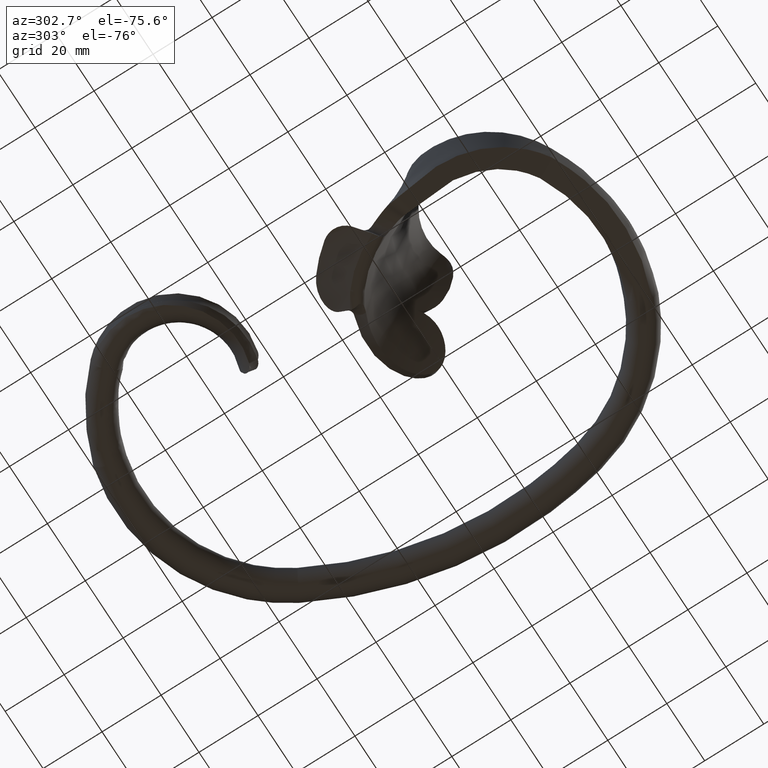
[diagram: clean part render]
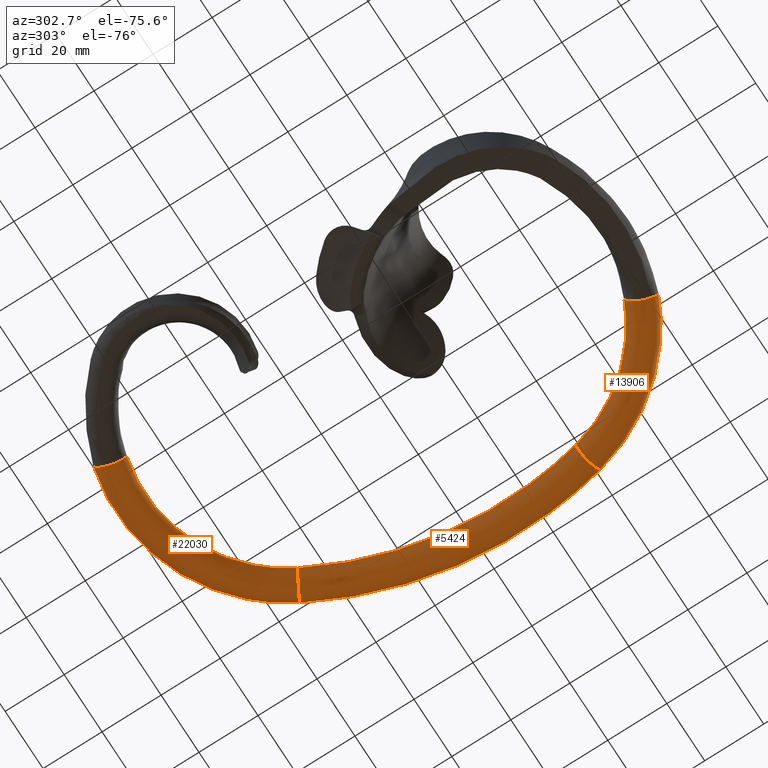
[diagram: same view with one multi-face feature highlighted, each face labeled with its STEP entity id]
A machine part, auxiliary view. The highlighted faces form ONE feature: a constant-radius fillet chain: 3 tangent blend faces with common blend radius 5 mm. The faces share edges in the B-rep.
Their STEP definitions:
[1] entity #5424 (Torus):
#6 = EDGE_LOOP ( 'NONE', ( #12671 ) ) ;
#573 = CARTESIAN_POINT ( 'NONE',  ( 43.34716385779181991, 55.20016401621919755, 0.000000000000000000 ) ) ;
#3351 = DIRECTION ( 'NONE',  ( 0.9749311672416889341, -0.2225066721263836422, 0.000000000000000000 ) ) ;
#3363 = CIRCLE ( 'NONE', #25724, 5.000000000000003553 ) ;
#3461 = EDGE_CURVE ( 'NONE', #16792, #16792, #3363, .T. ) ;
#4579 = DIRECTION ( 'NONE',  ( -0.000000000000000000, -0.000000000000000000, -1.000000000000000000 ) ) ;
#5424 = ADVANCED_FACE ( 'NONE', ( #6588, #22348 ), #14282, .T. ) ;
#6492 = VERTEX_POINT ( 'NONE', #573 ) ;
#6588 = FACE_OUTER_BOUND ( 'NONE', #6, .T. ) ;
#8968 = CARTESIAN_POINT ( 'NONE',  ( 56.69091407590296683, -38.35040032758304562, 0.000000000000000000 ) ) ;
#11094 = DIRECTION ( 'NONE',  ( 0.8738421504378167670, 0.4862097244175727084, 0.000000000000000000 ) ) ;
#11256 = AXIS2_PLACEMENT_3D ( 'NONE', #20701, #4579, #12506 ) ;
#11383 = CARTESIAN_POINT ( 'NONE',  ( 51.81625823969451972, -37.23786696695112397, 0.000000000000000000 ) ) ;
#11833 = EDGE_CURVE ( 'NONE', #6492, #6492, #19182, .T. ) ;
#12506 = DIRECTION ( 'NONE',  ( -1.000000000000000000, 0.000000000000000000, 0.000000000000000000 ) ) ;
#12671 = ORIENTED_EDGE ( 'NONE', *, *, #3461, .F. ) ;
#14282 = TOROIDAL_SURFACE ( 'NONE', #11256, 127.0000000000000000, 5.000000000000000000 ) ;
#14378 = ORIENTED_EDGE ( 'NONE', *, *, #11833, .T. ) ;
#16792 = VERTEX_POINT ( 'NONE', #8968 ) ;
#18923 = CARTESIAN_POINT ( 'NONE',  ( 38.97795310560272952, 52.76911539413133312, 0.000000000000000000 ) ) ;
#19182 = CIRCLE ( 'NONE', #25413, 5.000000000000003553 ) ;
#19481 = DIRECTION ( 'NONE',  ( -0.2225066721263834757, -0.9749311672416890451, 0.000000000000000000 ) ) ;
#20701 = CARTESIAN_POINT ( 'NONE',  ( -72.00000000000000000, -8.979519606900424833, 0.000000000000000000 ) ) ;
#21894 = EDGE_LOOP ( 'NONE', ( #14378 ) ) ;
#22348 = FACE_OUTER_BOUND ( 'NONE', #21894, .T. ) ;
#25407 = DIRECTION ( 'NONE',  ( 0.4862097244175730415, -0.8738421504378166560, 0.000000000000000000 ) ) ;
#25413 = AXIS2_PLACEMENT_3D ( 'NONE', #18923, #25407, #11094 ) ;
#25724 = AXIS2_PLACEMENT_3D ( 'NONE', #11383, #19481, #3351 ) ;
[2] entity #22030 (Torus):
#121 = CARTESIAN_POINT ( 'NONE',  ( -7.335680867601547028, 26.99999999999996803, 0.000000000000000000 ) ) ;
#573 = CARTESIAN_POINT ( 'NONE',  ( 43.34716385779181991, 55.20016401621919755, 0.000000000000000000 ) ) ;
#1362 = CARTESIAN_POINT ( 'NONE',  ( -21.00000000000000000, 78.20826478848864838, 0.000000000000000000 ) ) ;
#2314 = FACE_OUTER_BOUND ( 'NONE', #15854, .T. ) ;
#3915 = CIRCLE ( 'NONE', #26061, 5.000000000000001776 ) ;
#4278 = CARTESIAN_POINT ( 'NONE',  ( -22.21257077063559748, 82.75248279860988987, 1.697043900551020501 ) ) ;
#5052 = DIRECTION ( 'NONE',  ( -0.2578173421207258786, 0.9661936752545033924, 0.000000000000000000 ) ) ;
#5137 = DIRECTION ( 'NONE',  ( 0.9661936752545035034, 0.2578173421207256011, 0.000000000000000000 ) ) ;
#5563 = TOROIDAL_SURFACE ( 'NONE', #9667, 53.00000000000000000, 5.000000000000000000 ) ;
#6492 = VERTEX_POINT ( 'NONE', #573 ) ;
#9253 = VERTEX_POINT ( 'NONE', #14448 ) ;
#9667 = AXIS2_PLACEMENT_3D ( 'NONE', #121, #12454, #26690 ) ;
#10258 = ORIENTED_EDGE ( 'NONE', *, *, #11833, .F. ) ;
#11094 = DIRECTION ( 'NONE',  ( 0.8738421504378167670, 0.4862097244175727084, 0.000000000000000000 ) ) ;
#11695 = ORIENTED_EDGE ( 'NONE', *, *, #24695, .T. ) ;
#11833 = EDGE_CURVE ( 'NONE', #6492, #6492, #19182, .T. ) ;
#12454 = DIRECTION ( 'NONE',  ( -0.000000000000000000, -0.000000000000000000, -1.000000000000000000 ) ) ;
#14448 = CARTESIAN_POINT ( 'NONE',  ( -22.15570349808480444, 82.53936758062033618, -2.214987626055387349 ) ) ;
#15643 = DIRECTION ( 'NONE',  ( -0.2578173421207258786, 0.9661936752545033924, 0.000000000000000000 ) ) ;
#15854 = EDGE_LOOP ( 'NONE', ( #10258 ) ) ;
#16706 = VERTEX_POINT ( 'NONE', #4278 ) ;
#16841 = EDGE_CURVE ( 'NONE', #9253, #16706, #20739, .T. ) ;
#17356 = EDGE_LOOP ( 'NONE', ( #25034, #11695 ) ) ;
#17580 = AXIS2_PLACEMENT_3D ( 'NONE', #25914, #22023, #15643 ) ;
#18923 = CARTESIAN_POINT ( 'NONE',  ( 38.97795310560272952, 52.76911539413133312, 0.000000000000000000 ) ) ;
#19182 = CIRCLE ( 'NONE', #25413, 5.000000000000003553 ) ;
#20739 = CIRCLE ( 'NONE', #17580, 5.000000000000001776 ) ;
#22023 = DIRECTION ( 'NONE',  ( 0.9661936752545035034, 0.2578173421207256011, 0.000000000000000000 ) ) ;
#22030 = ADVANCED_FACE ( 'NONE', ( #2314, #24881 ), #5563, .T. ) ;
#24695 = EDGE_CURVE ( 'NONE', #16706, #9253, #3915, .T. ) ;
#24881 = FACE_OUTER_BOUND ( 'NONE', #17356, .T. ) ;
#25034 = ORIENTED_EDGE ( 'NONE', *, *, #16841, .T. ) ;
#25407 = DIRECTION ( 'NONE',  ( 0.4862097244175730415, -0.8738421504378166560, 0.000000000000000000 ) ) ;
#25413 = AXIS2_PLACEMENT_3D ( 'NONE', #18923, #25407, #11094 ) ;
#25914 = CARTESIAN_POINT ( 'NONE',  ( -21.00000000000000000, 78.20826478848864838, 0.000000000000000000 ) ) ;
#26061 = AXIS2_PLACEMENT_3D ( 'NONE', #1362, #5137, #5052 ) ;
#26690 = DIRECTION ( 'NONE',  ( -1.000000000000000000, 0.000000000000000000, 0.000000000000000000 ) ) ;
[3] entity #13906 (Torus):
#786 = CARTESIAN_POINT ( 'NONE',  ( 20.00000000000000711, -75.49300838377124023, 0.000000000000000000 ) ) ;
#1439 = CIRCLE ( 'NONE', #26590, 5.000000000000007105 ) ;
#1818 = ORIENTED_EDGE ( 'NONE', *, *, #3717, .F. ) ;
#1865 = ORIENTED_EDGE ( 'NONE', *, *, #12524, .F. ) ;
#2079 = TOROIDAL_SURFACE ( 'NONE', #8080, 55.00000000000003553, 5.000000000000000000 ) ;
#2961 = DIRECTION ( 'NONE',  ( -1.000000000000000000, 0.000000000000000000, 0.000000000000000000 ) ) ;
#3351 = DIRECTION ( 'NONE',  ( 0.9749311672416889341, -0.2225066721263836422, 0.000000000000000000 ) ) ;
#3363 = CIRCLE ( 'NONE', #25724, 5.000000000000003553 ) ;
#3461 = EDGE_CURVE ( 'NONE', #16792, #16792, #3363, .T. ) ;
#3616 = CIRCLE ( 'NONE', #25193, 5.000000000000007105 ) ;
#3717 = EDGE_CURVE ( 'NONE', #24599, #18610, #1439, .T. ) ;
#6127 = DIRECTION ( 'NONE',  ( -0.9180546978867484276, -0.3964537447017892347, 0.000000000000000000 ) ) ;
#6165 = VERTEX_POINT ( 'NONE', #26011 ) ;
#6403 = EDGE_LOOP ( 'NONE', ( #21469 ) ) ;
#6956 = CARTESIAN_POINT ( 'NONE',  ( -1.804955958598406074, -25.00000000000004263, 0.000000000000000000 ) ) ;
#8080 = AXIS2_PLACEMENT_3D ( 'NONE', #6956, #25406, #2961 ) ;
#8388 = DIRECTION ( 'NONE',  ( 0.3964537447017886240, -0.9180546978867485386, 0.000000000000000000 ) ) ;
#8968 = CARTESIAN_POINT ( 'NONE',  ( 56.69091407590296683, -38.35040032758304562, 0.000000000000000000 ) ) ;
#9792 = CIRCLE ( 'NONE', #20322, 5.000000000000007105 ) ;
#11383 = CARTESIAN_POINT ( 'NONE',  ( 51.81625823969451972, -37.23786696695112397, 0.000000000000000000 ) ) ;
#11513 = CARTESIAN_POINT ( 'NONE',  ( 18.78068708145919175, -72.66948617463580717, 3.942635802459163230 ) ) ;
#11542 = CARTESIAN_POINT ( 'NONE',  ( 21.21931291854117418, -78.31653059290741226, -3.942635802460212613 ) ) ;
#12014 = DIRECTION ( 'NONE',  ( -0.9180546978867484276, -0.3964537447017892347, 0.000000000000000000 ) ) ;
#12428 = CARTESIAN_POINT ( 'NONE',  ( 20.00000000000000711, -75.49300838377124023, 0.000000000000000000 ) ) ;
#12524 = EDGE_CURVE ( 'NONE', #15726, #6165, #24318, .T. ) ;
#12560 = ORIENTED_EDGE ( 'NONE', *, *, #22779, .F. ) ;
#13191 = DIRECTION ( 'NONE',  ( -0.9180546978867484276, -0.3964537447017892347, 0.000000000000000000 ) ) ;
#13906 = ADVANCED_FACE ( 'NONE', ( #14980, #14323 ), #2079, .T. ) ;
#14311 = CARTESIAN_POINT ( 'NONE',  ( 20.00000000000000711, -75.49300838377124023, 0.000000000000000000 ) ) ;
#14323 = FACE_OUTER_BOUND ( 'NONE', #6403, .T. ) ;
#14980 = FACE_OUTER_BOUND ( 'NONE', #20946, .T. ) ;
#15166 = DIRECTION ( 'NONE',  ( 0.3964537447017886240, -0.9180546978867485386, 0.000000000000000000 ) ) ;
#15726 = VERTEX_POINT ( 'NONE', #11513 ) ;
#16238 = DIRECTION ( 'NONE',  ( 0.3964537447017886240, -0.9180546978867485386, 0.000000000000000000 ) ) ;
#16388 = DIRECTION ( 'NONE',  ( 0.3964537447017886240, -0.9180546978867485386, 0.000000000000000000 ) ) ;
#16578 = DIRECTION ( 'NONE',  ( -0.9180546978867484276, -0.3964537447017892347, 0.000000000000000000 ) ) ;
#16792 = VERTEX_POINT ( 'NONE', #8968 ) ;
#17698 = CARTESIAN_POINT ( 'NONE',  ( 21.56307272788018992, -79.11256370427510376, 3.075549001202900978 ) ) ;
#18610 = VERTEX_POINT ( 'NONE', #17698 ) ;
#19122 = AXIS2_PLACEMENT_3D ( 'NONE', #786, #13191, #15166 ) ;
#19481 = DIRECTION ( 'NONE',  ( -0.2225066721263834757, -0.9749311672416890451, 0.000000000000000000 ) ) ;
#20221 = EDGE_CURVE ( 'NONE', #6165, #24599, #9792, .T. ) ;
#20322 = AXIS2_PLACEMENT_3D ( 'NONE', #24352, #12014, #16238 ) ;
#20946 = EDGE_LOOP ( 'NONE', ( #1818, #24882, #1865, #12560 ) ) ;
#21469 = ORIENTED_EDGE ( 'NONE', *, *, #3461, .T. ) ;
#22779 = EDGE_CURVE ( 'NONE', #18610, #15726, #3616, .T. ) ;
#24318 = CIRCLE ( 'NONE', #19122, 5.000000000000007105 ) ;
#24352 = CARTESIAN_POINT ( 'NONE',  ( 20.00000000000000711, -75.49300838377124023, 0.000000000000000000 ) ) ;
#24599 = VERTEX_POINT ( 'NONE', #11542 ) ;
#24882 = ORIENTED_EDGE ( 'NONE', *, *, #20221, .F. ) ;
#25193 = AXIS2_PLACEMENT_3D ( 'NONE', #14311, #6127, #16388 ) ;
#25406 = DIRECTION ( 'NONE',  ( -0.000000000000000000, -0.000000000000000000, -1.000000000000000000 ) ) ;
#25724 = AXIS2_PLACEMENT_3D ( 'NONE', #11383, #19481, #3351 ) ;
#26011 = CARTESIAN_POINT ( 'NONE',  ( 18.43692727211982074, -71.87345306326729144, -3.075549001202964039 ) ) ;
#26590 = AXIS2_PLACEMENT_3D ( 'NONE', #12428, #16578, #8388 ) ;